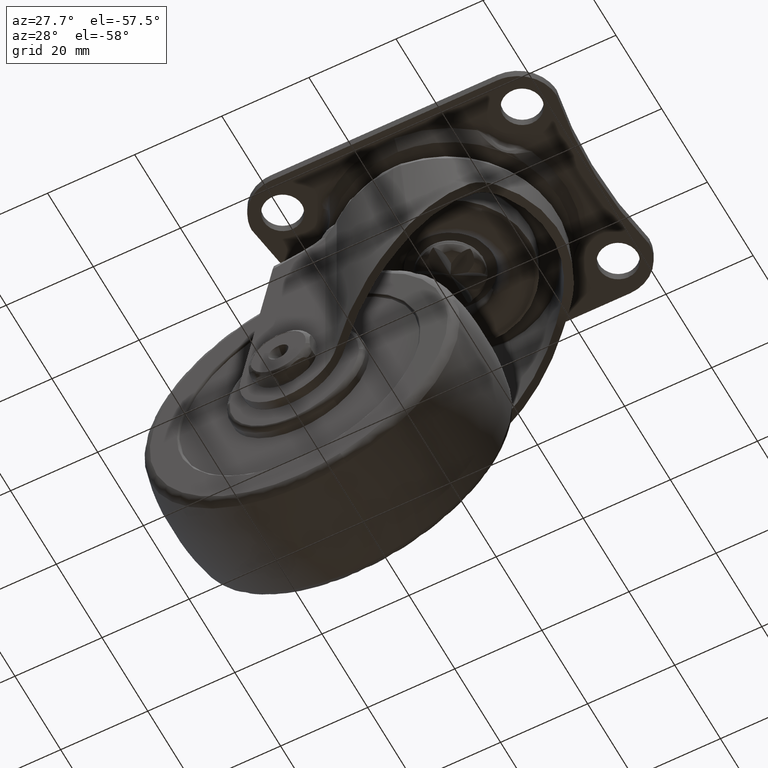
[diagram: clean part render]
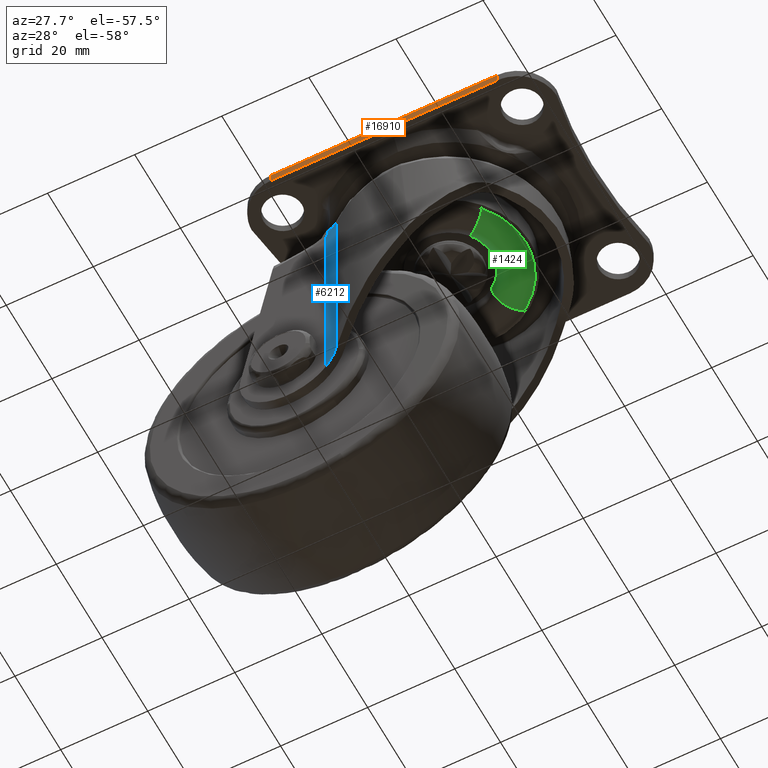
[diagram: same view with three faces highlighted in distinct colors, each labeled with its STEP entity id]
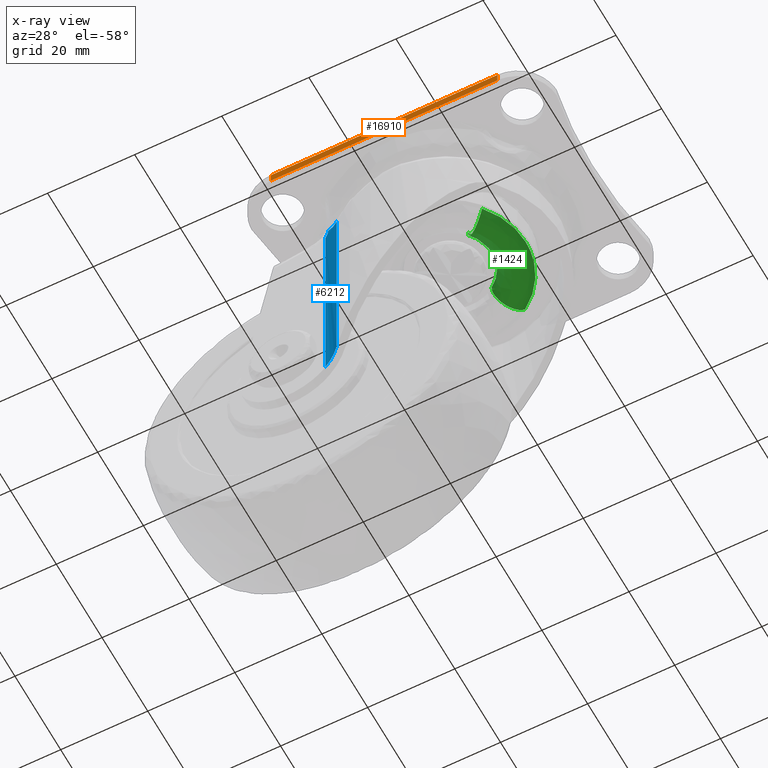
[diagram: x-ray of the same camera — body ghosted, the three highlighted faces saturated]
A machine part, auxiliary view with three faces highlighted in distinct colors.
The next image is the same camera in x-ray (body ghosted, the three faces saturated) — at least one of them is partly hidden behind the body in this view.
Their STEP definitions:

[orange] entity #16910 — the highlighted face is a freeform B-spline surface patch.
#16844=CARTESIAN_POINT('',(-25.999990000000000,-29.0,-2.0));
#16845=VERTEX_POINT('',#16844);
#16846=CARTESIAN_POINT('',(-25.999990000000000,-29.0,0.0));
#16847=VERTEX_POINT('',#16846);
#16848=CARTESIAN_POINT('',(-25.999990000000000,-29.0,-2.0));
#16849=CARTESIAN_POINT('',(-25.999990000000000,-29.0,0.0));
#16850=QUASI_UNIFORM_CURVE('',1,(#16848,#16849),.UNSPECIFIED.,.F.,.U.);
#16851=EDGE_CURVE('',#16845,#16847,#16850,.T.);
#16883=CARTESIAN_POINT('',(-28.597389359494681,-29.0,-2.099899996123612));
#16884=CARTESIAN_POINT('',(-28.597389359494681,-29.0,0.099900049767792));
#16885=CARTESIAN_POINT('',(28.597389711590949,-29.0,-2.099899996123612));
#16886=CARTESIAN_POINT('',(28.597389711590949,-29.0,0.099900049767792));
#16887=B_SPLINE_SURFACE_WITH_KNOTS('',1,1,((#16883,#16885),(#16884,#16886)),.UNSPECIFIED.,.F.,.F.,.U.,(2,2),(2,2),(0.0,2.199800045891404),(0.0,57.194779071085627),.UNSPECIFIED.);
#16888=CARTESIAN_POINT('',(25.999993141592750,-28.999999999999449,-2.0));
#16889=VERTEX_POINT('',#16888);
#16890=CARTESIAN_POINT('',(-25.999990000000000,-29.0,-2.0));
#16891=CARTESIAN_POINT('',(25.999993141592750,-28.999999999999449,-2.0));
#16892=QUASI_UNIFORM_CURVE('',1,(#16890,#16891),.UNSPECIFIED.,.F.,.U.);
#16893=EDGE_CURVE('',#16845,#16889,#16892,.T.);
#16894=ORIENTED_EDGE('',*,*,#16893,.T.);
#16895=CARTESIAN_POINT('',(25.999993141592750,-28.999999999999449,0.0));
#16896=VERTEX_POINT('',#16895);
#16897=CARTESIAN_POINT('',(25.999993141592750,-28.999999999999449,-2.0));
#16898=CARTESIAN_POINT('',(25.999993141592750,-28.999999999999449,0.0));
#16899=QUASI_UNIFORM_CURVE('',1,(#16897,#16898),.UNSPECIFIED.,.F.,.U.);
#16900=EDGE_CURVE('',#16889,#16896,#16899,.T.);
#16901=ORIENTED_EDGE('',*,*,#16900,.T.);
#16902=CARTESIAN_POINT('',(25.999993141592750,-28.999999999999449,0.0));
#16903=CARTESIAN_POINT('',(-25.999990000000000,-29.0,0.0));
#16904=QUASI_UNIFORM_CURVE('',1,(#16902,#16903),.UNSPECIFIED.,.F.,.U.);
#16905=EDGE_CURVE('',#16896,#16847,#16904,.T.);
#16906=ORIENTED_EDGE('',*,*,#16905,.T.);
#16907=ORIENTED_EDGE('',*,*,#16851,.F.);
#16908=EDGE_LOOP('',(#16894,#16901,#16906,#16907));
#16909=FACE_OUTER_BOUND('',#16908,.T.);
#16910=ADVANCED_FACE('',(#16909),#16887,.F.);

[blue] entity #6212 — the highlighted face is a freeform B-spline surface patch.
#3129=CARTESIAN_POINT('',(-16.051119520783899,-19.166665388888450,-11.106001000000020));
#3130=VERTEX_POINT('',#3129);
#3285=CARTESIAN_POINT('',(-18.208526314353900,-18.112099282122202,-11.106001000000020));
#3286=VERTEX_POINT('',#3285);
#3300=CARTESIAN_POINT('',(-16.051119520783899,-19.166665388888440,-11.106001000000020));
#3301=CARTESIAN_POINT('',(-16.999386804037844,-18.372539170668880,-11.106001000000024));
#3302=CARTESIAN_POINT('',(-18.208526314353900,-18.112099282122209,-11.106001000000020));
#3310=(BOUNDED_CURVE()B_SPLINE_CURVE(2,(#3300,#3301,#3302),.UNSPECIFIED.,.F.,.U.)CURVE()GEOMETRIC_REPRESENTATION_ITEM()QUASI_UNIFORM_CURVE()RATIONAL_B_SPLINE_CURVE((1.0,0.970739338100182,1.0))REPRESENTATION_ITEM(''));
#3311=EDGE_CURVE('',#3130,#3286,#3310,.T.);
#3456=CARTESIAN_POINT('',(-18.592879937129101,-18.044885990340251,-11.259223868462060));
#3457=VERTEX_POINT('',#3456);
#3471=CARTESIAN_POINT('',(-18.208526314353900,-18.112099282122202,-11.106001000000020));
#3472=CARTESIAN_POINT('',(-18.243680773518751,-18.104527266363309,-11.106001000000029));
#3473=CARTESIAN_POINT('',(-18.278343089862499,-18.097457864437210,-11.109395923022710));
#3474=CARTESIAN_POINT('',(-18.346693493562942,-18.084247287718881,-11.122831065201339));
#3475=CARTESIAN_POINT('',(-18.380652380985399,-18.078060711835640,-11.132991780523980));
#3476=CARTESIAN_POINT('',(-18.478947348948431,-18.061146316891840,-11.172878686236210));
#3477=CARTESIAN_POINT('',(-18.539366145201011,-18.052105215699079,-11.211799389377370));
#3478=CARTESIAN_POINT('',(-18.592879937129101,-18.044885990340251,-11.259223868462060));
#3479=B_SPLINE_CURVE_WITH_KNOTS('',3,(#3471,#3472,#3473,#3474,#3475,#3476,#3477,#3478),.UNSPECIFIED.,.F.,.U.,(4,2,2,4),(0.0,0.250000000000001,0.500000000000002,1.0),.UNSPECIFIED.);
#3480=EDGE_CURVE('',#3286,#3457,#3479,.T.);
#4276=CARTESIAN_POINT('',(-19.261344709030698,-18.0,-13.353386034379520));
#4277=VERTEX_POINT('',#4276);
#4278=CARTESIAN_POINT('',(-18.592879937129101,-18.044885990340251,-11.259223868462060));
#4279=CARTESIAN_POINT('',(-18.614072342747800,-18.042027049746700,-11.442228913528540));
#4280=CARTESIAN_POINT('',(-18.643608629014000,-18.038158820925830,-11.623868992218130));
#4281=CARTESIAN_POINT('',(-18.700649026718601,-18.031500549505498,-11.894258819035420));
#4282=CARTESIAN_POINT('',(-18.721791817332392,-18.029141601960280,-11.984042698470351));
#4283=CARTESIAN_POINT('',(-18.768468067244701,-18.024296717821301,-12.162899967547490));
#4284=CARTESIAN_POINT('',(-18.794043699493809,-18.021807489755950,-12.252085297791700));
#4285=CARTESIAN_POINT('',(-18.877016473951869,-18.014483435191750,-12.516568431766160));
#4286=CARTESIAN_POINT('',(-18.940733455731170,-18.009756450673429,-12.689385405626419));
#4287=CARTESIAN_POINT('',(-19.086461839078328,-18.002526814565680,-13.027425183461460));
#4288=CARTESIAN_POINT('',(-19.168425803945500,-17.999999999999989,-13.192667307919500));
#4289=CARTESIAN_POINT('',(-19.261344709030698,-18.0,-13.353386034379520));
#4290=B_SPLINE_CURVE_WITH_KNOTS('',3,(#4278,#4279,#4280,#4281,#4282,#4283,#4284,#4285,#4286,#4287,#4288,#4289),.UNSPECIFIED.,.F.,.U.,(4,2,2,2,2,4),(0.0,0.250000000000003,0.375000000000003,0.500000000000003,0.750000000000001,1.0),.UNSPECIFIED.);
#4291=EDGE_CURVE('',#3457,#4277,#4290,.T.);
#5231=CARTESIAN_POINT('',(-16.051119520783899,-19.166665388888450,-58.333372318384399));
#5232=VERTEX_POINT('',#5231);
#5246=CARTESIAN_POINT('',(-19.261344709030698,-18.0,-62.195317013483702));
#5247=VERTEX_POINT('',#5246);
#5248=CARTESIAN_POINT('',(-16.051119520783882,-19.166665388888461,-58.333372318384420));
#5249=CARTESIAN_POINT('',(-17.444236374762088,-17.999999999999996,-60.009310898510257));
#5250=CARTESIAN_POINT('',(-19.261344709030698,-18.0,-62.195317013483702));
#5258=(BOUNDED_CURVE()B_SPLINE_CURVE(2,(#5248,#5249,#5250),.UNSPECIFIED.,.F.,.U.)CURVE()GEOMETRIC_REPRESENTATION_ITEM()QUASI_UNIFORM_CURVE()RATIONAL_B_SPLINE_CURVE((1.0,0.939858213301959,1.0))REPRESENTATION_ITEM(''));
#5259=EDGE_CURVE('',#5232,#5247,#5258,.T.);
#6177=CARTESIAN_POINT('',(-16.051119520783899,-19.166665388888450,-58.333372318384399));
#6178=CARTESIAN_POINT('',(-16.051119520783899,-19.166665388888450,-11.106001000000020));
#6179=QUASI_UNIFORM_CURVE('',1,(#6177,#6178),.UNSPECIFIED.,.F.,.U.);
#6180=EDGE_CURVE('',#5232,#3130,#6179,.T.);
#6186=CARTESIAN_POINT('',(-19.392229450570071,-18.001713375122218,-63.472549913820792));
#6187=CARTESIAN_POINT('',(-19.392229450570071,-18.001713375122218,-9.796837277154502));
#6188=CARTESIAN_POINT('',(-17.403329929154147,-17.949632208245426,-63.472549913820792));
#6189=CARTESIAN_POINT('',(-17.403329929154147,-17.949632208245426,-9.796837277154502));
#6190=CARTESIAN_POINT('',(-15.922388019185357,-19.278257367396698,-63.472549913820792));
#6191=CARTESIAN_POINT('',(-15.922388019185357,-19.278257367396698,-9.796837277154502));
#6199=(BOUNDED_SURFACE()B_SPLINE_SURFACE(1,2,((#6186,#6188,#6190),(#6187,#6189,#6191)),.UNSPECIFIED.,.F.,.F.,.U.)B_SPLINE_SURFACE_WITH_KNOTS((2,2),(3,3),(0.0,53.675712636666290),(0.0,3.833007411046271),.UNSPECIFIED.)GEOMETRIC_REPRESENTATION_ITEM()RATIONAL_B_SPLINE_SURFACE(((1.0,0.928205973073988,0.997984457892107),(1.0,0.928205973073988,0.997984457892107)))REPRESENTATION_ITEM('')SURFACE());
#6200=ORIENTED_EDGE('',*,*,#3311,.T.);
#6201=ORIENTED_EDGE('',*,*,#3480,.T.);
#6202=ORIENTED_EDGE('',*,*,#4291,.T.);
#6203=CARTESIAN_POINT('',(-19.261344709030698,-18.0,-62.195317013483702));
#6204=CARTESIAN_POINT('',(-19.261344709030698,-18.0,-13.353386034379520));
#6205=QUASI_UNIFORM_CURVE('',1,(#6203,#6204),.UNSPECIFIED.,.F.,.U.);
#6206=EDGE_CURVE('',#5247,#4277,#6205,.T.);
#6207=ORIENTED_EDGE('',*,*,#6206,.F.);
#6208=ORIENTED_EDGE('',*,*,#5259,.F.);
#6209=ORIENTED_EDGE('',*,*,#6180,.T.);
#6210=EDGE_LOOP('',(#6200,#6201,#6202,#6207,#6208,#6209));
#6211=FACE_OUTER_BOUND('',#6210,.T.);
#6212=ADVANCED_FACE('',(#6211),#6199,.F.);

[green] entity #1424 — the highlighted face is a freeform B-spline surface patch.
#271=CARTESIAN_POINT('',(7.227046226927605,-6.166020015699724,-14.105993081923121));
#272=VERTEX_POINT('',#271);
#364=CARTESIAN_POINT('',(5.290315068270839,7.890663247063014,-14.105993899331990));
#365=VERTEX_POINT('',#364);
#381=CARTESIAN_POINT('',(9.500000000000000,0.0,-14.105999499999900));
#382=VERTEX_POINT('',#381);
#383=CARTESIAN_POINT('',(5.290315068270839,7.890663247063014,-14.105993899331990));
#384=CARTESIAN_POINT('',(9.500000000001826,5.068269370942449,-14.105996699665951));
#385=CARTESIAN_POINT('',(9.500000000000000,0.0,-14.105999499999900));
#393=(BOUNDED_CURVE()B_SPLINE_CURVE(2,(#383,#384,#385),.UNSPECIFIED.,.F.,.U.)B_SPLINE_CURVE_WITH_KNOTS((3,3),(0.345516821874840,0.500000000000000),.UNSPECIFIED.)CURVE()GEOMETRIC_REPRESENTATION_ITEM()RATIONAL_B_SPLINE_CURVE((0.861700581402329,0.819011698825560,1.0))REPRESENTATION_ITEM(''));
#394=EDGE_CURVE('',#365,#382,#393,.T.);
#396=CARTESIAN_POINT('',(9.500000000000000,0.0,-14.105999499999900));
#397=CARTESIAN_POINT('',(9.500000000003167,-3.501944656245669,-14.105996290961508));
#398=CARTESIAN_POINT('',(7.227046226927605,-6.166020015699724,-14.105993081923128));
#406=(BOUNDED_CURVE()B_SPLINE_CURVE(2,(#396,#397,#398),.UNSPECIFIED.,.F.,.U.)B_SPLINE_CURVE_WITH_KNOTS((3,3),(0.500000000000000,0.613065012345051),.UNSPECIFIED.)CURVE()GEOMETRIC_REPRESENTATION_ITEM()RATIONAL_B_SPLINE_CURVE((1.0,0.867536098396301,0.854888458153369))REPRESENTATION_ITEM(''));
#407=EDGE_CURVE('',#382,#272,#406,.T.);
#1254=CARTESIAN_POINT('',(13.148545752275380,-11.218177084249390,-16.467004918702202));
#1255=VERTEX_POINT('',#1254);
#1305=CARTESIAN_POINT('',(9.624959161664837,14.355901700257180,-16.467004918792870));
#1306=VERTEX_POINT('',#1305);
#1320=CARTESIAN_POINT('',(9.624959161664837,14.355901700257176,-16.467004918792870));
#1321=CARTESIAN_POINT('',(8.642576283728076,12.890650363939873,-19.107434236916795));
#1322=CARTESIAN_POINT('',(6.954023411479303,10.372128266434190,-18.164173815060270));
#1323=CARTESIAN_POINT('',(5.290313139353033,7.890659576255160,-17.234790981437236));
#1324=CARTESIAN_POINT('',(5.290315068270839,7.890663247063014,-14.105993899331990));
#1332=(BOUNDED_CURVE()B_SPLINE_CURVE(2,(#1320,#1321,#1322,#1323,#1324),.UNSPECIFIED.,.F.,.U.)B_SPLINE_CURVE_WITH_KNOTS((3,2,3),(-3.712482182396270,-2.0,-0.307101097542270),.UNSPECIFIED.)CURVE()GEOMETRIC_REPRESENTATION_ITEM()RATIONAL_B_SPLINE_CURVE((0.935223006005652,0.774702679179256,1.0,0.777279091680589,0.931602164609498))REPRESENTATION_ITEM(''));
#1333=EDGE_CURVE('',#1306,#365,#1332,.T.);
#1339=CARTESIAN_POINT('',(13.148545752275373,-11.218177084249390,-16.467004918702202));
#1340=CARTESIAN_POINT('',(11.806524711749841,-10.073180523529400,-19.107434237047677));
#1341=CARTESIAN_POINT('',(9.499815143881961,-8.105121751959615,-18.164173815105272));
#1342=CARTESIAN_POINT('',(7.227042263186348,-6.166017381844513,-17.234790794248532));
#1343=CARTESIAN_POINT('',(7.227046226927606,-6.166020015699724,-14.105993081923126));
#1351=(BOUNDED_CURVE()B_SPLINE_CURVE(2,(#1339,#1340,#1341,#1342,#1343),.UNSPECIFIED.,.F.,.U.)B_SPLINE_CURVE_WITH_KNOTS((3,2,3),(-3.712482182467262,-2.0,-0.307100832499180),.UNSPECIFIED.)CURVE()GEOMETRIC_REPRESENTATION_ITEM()RATIONAL_B_SPLINE_CURVE((0.894901911872084,0.741302239422806,0.956886118190660,0.743767539422804,0.891437225230009))REPRESENTATION_ITEM(''));
#1352=EDGE_CURVE('',#1255,#272,#1351,.T.);
#1357=CARTESIAN_POINT('',(9.769002920896361,14.570747084417441,-16.024143029447394));
#1358=CARTESIAN_POINT('',(24.339750005313803,4.801744163521084,-16.024143029447409));
#1359=CARTESIAN_POINT('',(14.570747084417441,-9.769002920896361,-16.024143029447394));
#1360=CARTESIAN_POINT('',(14.004870043376343,-10.613024702101011,-16.024143029447405));
#1361=CARTESIAN_POINT('',(13.345323555052627,-11.386062878690721,-16.024143029447398));
#1362=CARTESIAN_POINT('',(8.865514904554063,13.223168883599614,-19.231972230266411));
#1363=CARTESIAN_POINT('',(22.088683788153674,4.357653979045551,-19.231972230266415));
#1364=CARTESIAN_POINT('',(13.223168883599614,-8.865514904554063,-19.231972230266411));
#1365=CARTESIAN_POINT('',(12.709627083876777,-9.631477177431702,-19.231972230266422));
#1366=CARTESIAN_POINT('',(12.111078872782194,-10.333020777309809,-19.231972230266418));
#1367=CARTESIAN_POINT('',(6.954025067793397,10.372127155861190,-18.164173815173129));
#1368=CARTESIAN_POINT('',(17.326152223654589,3.418102088067795,-18.164173815173140));
#1369=CARTESIAN_POINT('',(10.372127155861190,-6.954025067793397,-18.164173815173129));
#1370=CARTESIAN_POINT('',(9.969309881616026,-7.554838546076421,-18.164173815173125));
#1371=CARTESIAN_POINT('',(9.499814391613919,-8.105122633602610,-18.164173815173136));
#1372=CARTESIAN_POINT('',(5.068874890253173,7.560371782717859,-17.111089287555885));
#1373=CARTESIAN_POINT('',(12.629246672971028,2.491496892464687,-17.111089287555885));
#1374=CARTESIAN_POINT('',(7.560371782717860,-5.068874890253172,-17.111089287555885));
#1375=CARTESIAN_POINT('',(7.266753288841846,-5.506815266381388,-17.111089287555885));
#1376=CARTESIAN_POINT('',(6.924532218719366,-5.907924144559832,-17.111089287555888));
#1377=CARTESIAN_POINT('',(5.307698852541637,7.916584548788398,-13.591881695936378));
#1378=CARTESIAN_POINT('',(13.224283401330036,2.608885696246762,-13.591881695936374));
#1379=CARTESIAN_POINT('',(7.916584548788399,-5.307698852541637,-13.591881695936378));
#1380=CARTESIAN_POINT('',(7.609131992398140,-5.766273128329550,-13.591881695936372));
#1381=CARTESIAN_POINT('',(7.250786911777315,-6.186280561644924,-13.591881695936372));
#1389=(BOUNDED_SURFACE()B_SPLINE_SURFACE(2,2,((#1357,#1362,#1367,#1372,#1377),(#1358,#1363,#1368,#1373,#1378),(#1359,#1364,#1369,#1374,#1379),(#1360,#1365,#1370,#1375,#1380),(#1361,#1366,#1371,#1376,#1381)),.UNSPECIFIED.,.F.,.F.,.U.)B_SPLINE_SURFACE_WITH_KNOTS((3,2,3),(3,2,3),(0.0,29.065402620539999,31.390632612668959),(0.0,6.225029601229540,12.385304796631949),.UNSPECIFIED.)GEOMETRIC_REPRESENTATION_ITEM()RATIONAL_B_SPLINE_SURFACE(((0.970918153611318,0.752324162921484,1.0,0.754900552544529,0.966420862206018),(0.686542810395685,0.531973517252274,0.707106781186548,0.533795299825708,0.683362745146025),(0.970918153611318,0.752324162921484,1.0,0.754900552544529,0.966420862206018),(0.948168147850184,0.734696128079367,0.976568564840903,0.737212149196015,0.943776234436839),(0.929058139539457,0.719888576122165,0.956886155731908,0.722353887684228,0.924754743655433)))REPRESENTATION_ITEM('')SURFACE());
#1390=CARTESIAN_POINT('',(17.283858148469498,0.0,-16.467004918565451));
#1391=VERTEX_POINT('',#1390);
#1392=CARTESIAN_POINT('',(17.283858148469498,0.0,-16.467004918565451));
#1393=CARTESIAN_POINT('',(17.283858148469502,-6.371280495674086,-16.467004918565458));
#1394=CARTESIAN_POINT('',(13.148545752275375,-11.218177084249387,-16.467004918702202));
#1402=(BOUNDED_CURVE()B_SPLINE_CURVE(2,(#1392,#1393,#1394),.UNSPECIFIED.,.F.,.U.)B_SPLINE_CURVE_WITH_KNOTS((3,3),(0.500000000000000,0.613065093416296),.UNSPECIFIED.)CURVE()GEOMETRIC_REPRESENTATION_ITEM()RATIONAL_B_SPLINE_CURVE((1.0,0.867536003415430,0.854888440015902))REPRESENTATION_ITEM(''));
#1403=EDGE_CURVE('',#1391,#1255,#1402,.T.);
#1404=ORIENTED_EDGE('',*,*,#1403,.T.);
#1405=ORIENTED_EDGE('',*,*,#1352,.T.);
#1406=ORIENTED_EDGE('',*,*,#407,.F.);
#1407=ORIENTED_EDGE('',*,*,#394,.F.);
#1408=ORIENTED_EDGE('',*,*,#1333,.F.);
#1409=CARTESIAN_POINT('',(9.624959161664837,14.355901700257176,-16.467004918792867));
#1410=CARTESIAN_POINT('',(17.283858148469506,9.220968938238197,-16.467004918565451));
#1411=CARTESIAN_POINT('',(17.283858148469498,0.0,-16.467004918565451));
#1419=(BOUNDED_CURVE()B_SPLINE_CURVE(2,(#1409,#1410,#1411),.UNSPECIFIED.,.F.,.U.)B_SPLINE_CURVE_WITH_KNOTS((3,3),(0.345516885357116,0.500000000000000),.UNSPECIFIED.)CURVE()GEOMETRIC_REPRESENTATION_ITEM()RATIONAL_B_SPLINE_CURVE((0.861700546317803,0.819011773199672,1.0))REPRESENTATION_ITEM(''));
#1420=EDGE_CURVE('',#1306,#1391,#1419,.T.);
#1421=ORIENTED_EDGE('',*,*,#1420,.T.);
#1422=EDGE_LOOP('',(#1404,#1405,#1406,#1407,#1408,#1421));
#1423=FACE_OUTER_BOUND('',#1422,.T.);
#1424=ADVANCED_FACE('',(#1423),#1389,.T.);